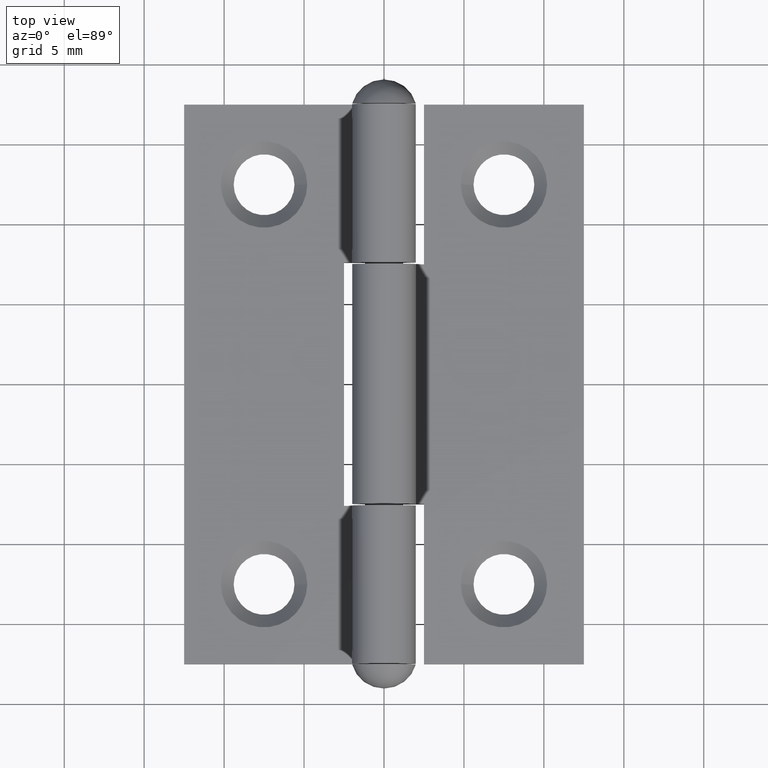
[diagram: clean part render]
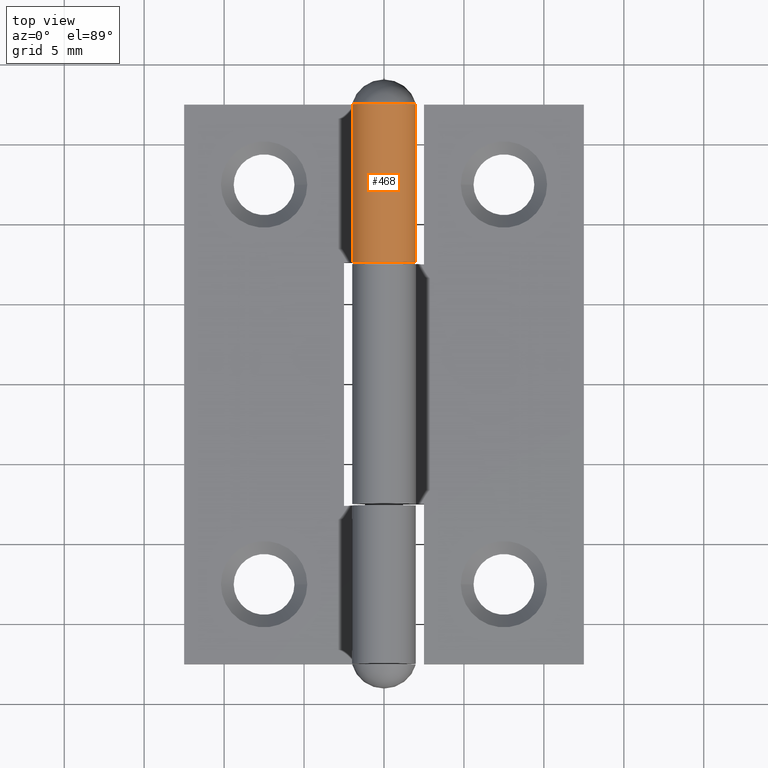
[diagram: same view with one face highlighted and labeled with its STEP entity id]
A machine part, top view. The second image highlights one B-rep face of the part: STEP entity #468.
In plain terms, the highlighted cylindrical surface (edge-blend (fillet) strip) has radius 2 mm, axis along (-0, -1, -0).
Its self-contained STEP definition (entity closure, byte-faithful):
#458 = VERTEX_POINT ( 'NONE', #2838 ) ;
#468 = ADVANCED_FACE ( 'NONE', ( #9970 ), #1962, .T. ) ;
#702 = DIRECTION ( 'NONE',  ( -0.000000000000000000, -1.000000000000000000, -0.000000000000000000 ) ) ;
#764 = EDGE_CURVE ( 'NONE', #7608, #1430, #1572, .T. ) ;
#1163 = CARTESIAN_POINT ( 'NONE',  ( -3.670329308849006544, 17.50000000000000000, 0.9000000000000002442 ) ) ;
#1340 = DIRECTION ( 'NONE',  ( -0.000000000000000000, -1.000000000000000000, -0.000000000000000000 ) ) ;
#1430 = VERTEX_POINT ( 'NONE', #4422 ) ;
#1509 = CARTESIAN_POINT ( 'NONE',  ( -2.000000000000000000, 17.50000000000000000, 0.000000000000000000 ) ) ;
#1572 = LINE ( 'NONE', #3350, #8486 ) ;
#1746 = DIRECTION ( 'NONE',  ( -0.000000000000000000, -1.000000000000000000, -0.000000000000000000 ) ) ;
#1819 = AXIS2_PLACEMENT_3D ( 'NONE', #3798, #7736, #3057 ) ;
#1962 = CYLINDRICAL_SURFACE ( 'NONE', #8922, 2.000000000000000000 ) ;
#2838 = CARTESIAN_POINT ( 'NONE',  ( -2.000000000000000000, 17.50000000000000000, 0.000000000000000000 ) ) ;
#3057 = DIRECTION ( 'NONE',  ( 0.000000000000000000, 0.000000000000000000, 1.000000000000000000 ) ) ;
#3350 = CARTESIAN_POINT ( 'NONE',  ( -3.670329308849006544, 17.50000000000000000, 0.9000000000000002442 ) ) ;
#3554 = AXIS2_PLACEMENT_3D ( 'NONE', #4265, #4183, #9789 ) ;
#3733 = ORIENTED_EDGE ( 'NONE', *, *, #764, .T. ) ;
#3798 = CARTESIAN_POINT ( 'NONE',  ( -2.000000000000000000, 7.599999999999998757, 2.000000000000000444 ) ) ;
#4183 = DIRECTION ( 'NONE',  ( 0.000000000000000000, 1.000000000000000000, -0.000000000000000000 ) ) ;
#4265 = CARTESIAN_POINT ( 'NONE',  ( -2.000000000000000000, 17.50000000000000000, 2.000000000000000444 ) ) ;
#4422 = CARTESIAN_POINT ( 'NONE',  ( -3.670329308849006544, 7.599999999999998757, 0.9000000000000002442 ) ) ;
#5712 = ORIENTED_EDGE ( 'NONE', *, *, #8186, .F. ) ;
#5811 = EDGE_CURVE ( 'NONE', #1430, #7963, #7690, .T. ) ;
#6738 = CARTESIAN_POINT ( 'NONE',  ( -2.000000000000000000, 7.599999999999999645, 2.602085213965211135E-16 ) ) ;
#7148 = ORIENTED_EDGE ( 'NONE', *, *, #7786, .F. ) ;
#7173 = CIRCLE ( 'NONE', #3554, 2.000000000000000000 ) ;
#7306 = EDGE_LOOP ( 'NONE', ( #10153, #7148, #5712, #3733 ) ) ;
#7421 = LINE ( 'NONE', #1509, #7548 ) ;
#7548 = VECTOR ( 'NONE', #702, 1000.000000000000000 ) ;
#7586 = CARTESIAN_POINT ( 'NONE',  ( -2.000000000000000000, 17.50000000000000000, 2.000000000000000444 ) ) ;
#7608 = VERTEX_POINT ( 'NONE', #1163 ) ;
#7690 = CIRCLE ( 'NONE', #1819, 1.999999999999999556 ) ;
#7736 = DIRECTION ( 'NONE',  ( 0.000000000000000000, 1.000000000000000000, -0.000000000000000000 ) ) ;
#7786 = EDGE_CURVE ( 'NONE', #458, #7963, #7421, .T. ) ;
#7963 = VERTEX_POINT ( 'NONE', #6738 ) ;
#8186 = EDGE_CURVE ( 'NONE', #7608, #458, #7173, .T. ) ;
#8486 = VECTOR ( 'NONE', #1746, 1000.000000000000000 ) ;
#8922 = AXIS2_PLACEMENT_3D ( 'NONE', #7586, #1340, #9959 ) ;
#9789 = DIRECTION ( 'NONE',  ( 0.000000000000000000, 0.000000000000000000, -1.000000000000000000 ) ) ;
#9959 = DIRECTION ( 'NONE',  ( 0.000000000000000000, 0.000000000000000000, -1.000000000000000000 ) ) ;
#9970 = FACE_OUTER_BOUND ( 'NONE', #7306, .T. ) ;
#10153 = ORIENTED_EDGE ( 'NONE', *, *, #5811, .T. ) ;